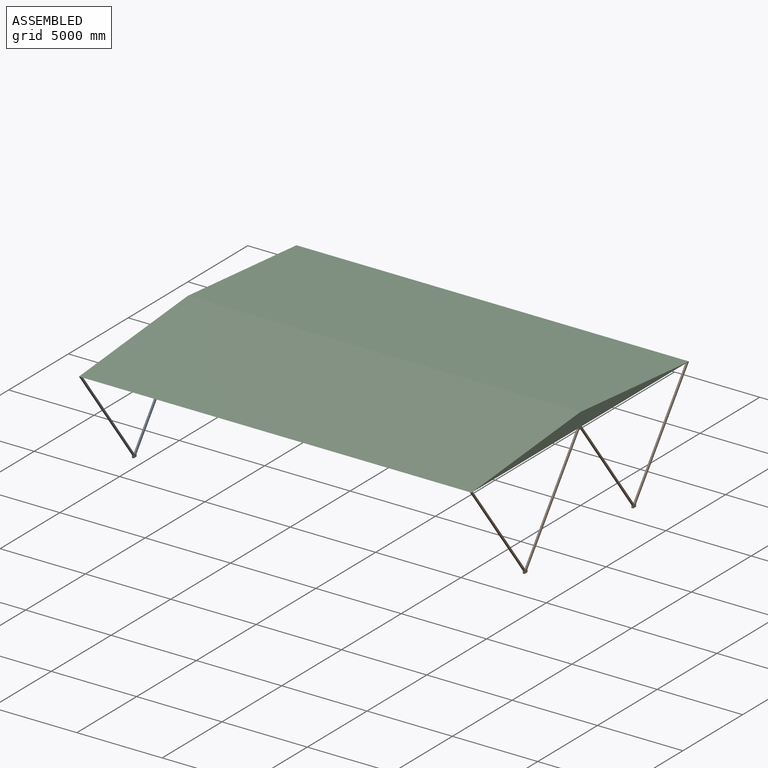
[diagram: assembled view]
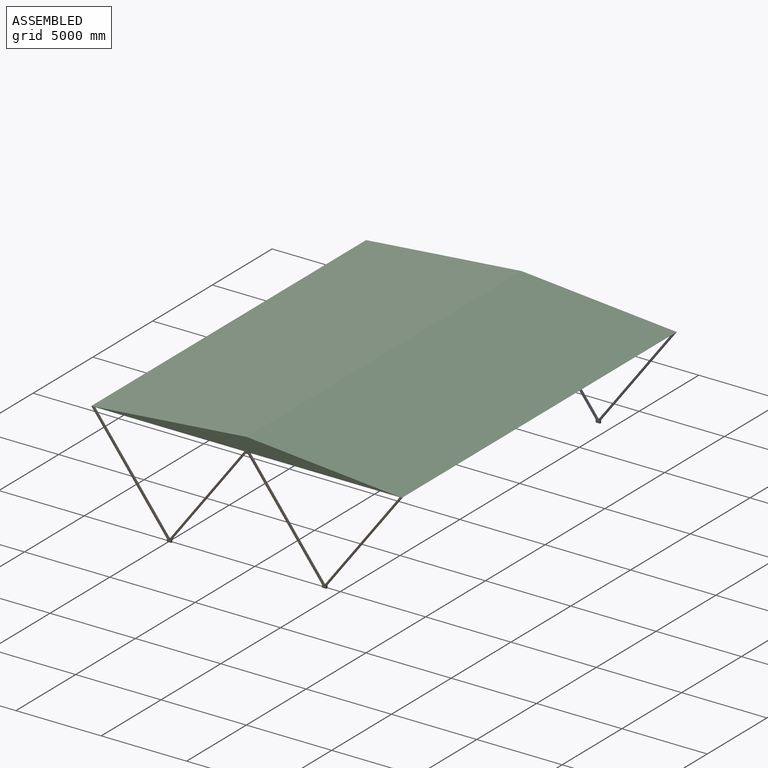
[diagram: assembled view, second angle]
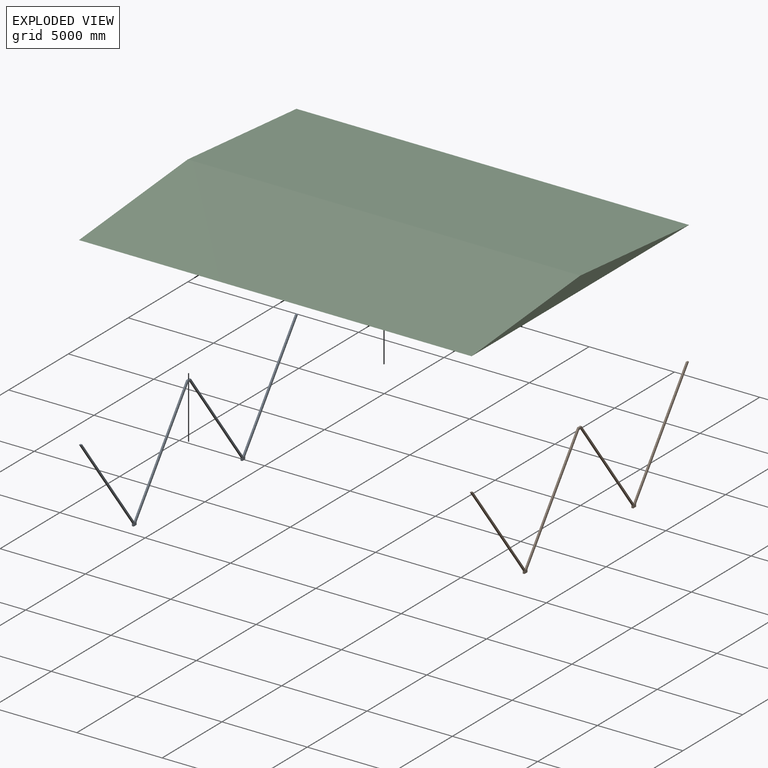
[diagram: exploded view]
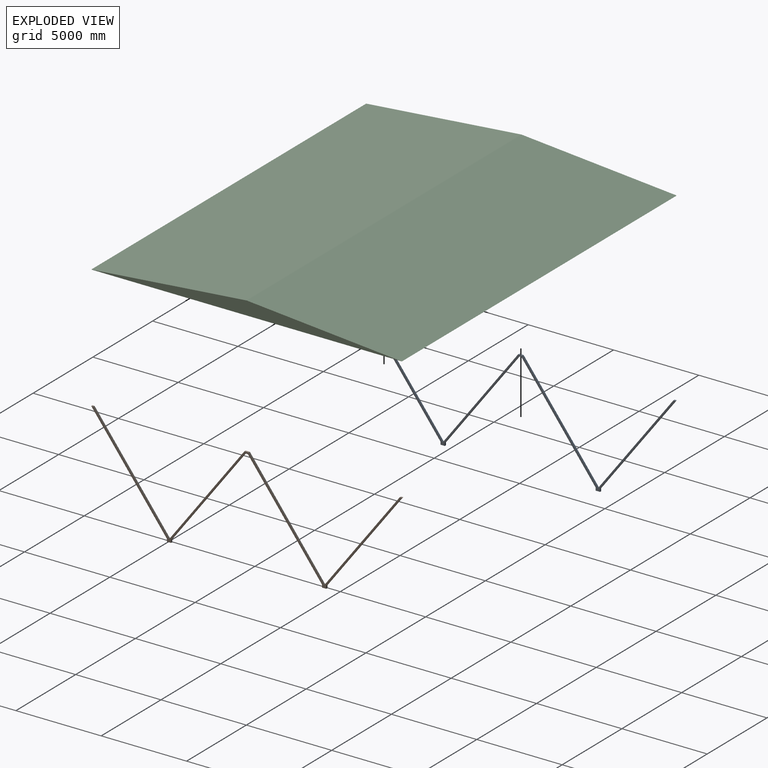
[diagram: exploded view, second angle]
ASSEMBLY  parts=3 mates=2
PART A: 20 faces, bbox 100x18200x6000 mm
  f0: plane 5841.09x4419.61mm, normal (0,0.8,0.6), area 732470mm2, adj f1,f17,f18,f19
  f1: plane 250.8x100mm, normal (0,0,1), area 25079.9mm2, adj f0,f2,f18,f19
  f2: plane 5841.09x4419.61mm, normal (0,-0.8,0.6), area 732470mm2, adj f1,f3,f18,f19
  f3: plane 5841.09x4429.49mm, normal (0,0.8,0.6), area 733066.7mm2, adj f2,f4,f18,f19
  f4: plane 125.5x100mm, normal (0,0,1), area 12550.2mm2, adj f3,f5,f18,f19
  f5: plane 5841.09x4429.49mm, normal (0,-0.8,-0.6), area 733066.7mm2, adj f4,f6,f18,f19
  f6: plane 158.91x100mm, normal (0,-1,0), area 15891.3mm2, adj f5,f7,f18,f19
  f7: plane 250.9x100mm, normal (0,0,-1), area 25090.1mm2, adj f6,f8,f18,f19
  f8: plane 158.91x100mm, normal (0,1,0), area 15891.3mm2, adj f7,f9,f18,f19
  f9: plane 5741.09x4343.94mm, normal (0,0.8,-0.6), area 719930mm2, adj f8,f10,f18,f19
  f10: plane 151.33x100mm, normal (0,0,-1), area 15132.8mm2, adj f9,f11,f18,f19
  f11: plane 5741.09x4343.94mm, normal (0,-0.8,-0.6), area 719930mm2, adj f10,f12,f18,f19
  f12: plane 158.91x100mm, normal (0,-1,0), area 15891.3mm2, adj f11,f13,f18,f19
  f13: plane 250.9x100mm, normal (0,0,-1), area 25090.1mm2, adj f12,f14,f18,f19
  f14: plane 158.91x100mm, normal (0,1,0), area 15891.3mm2, adj f13,f15,f18,f19
  f15: plane 5841.09x4429.49mm, normal (0,0.8,-0.6), area 733066.7mm2, adj f14,f16,f18,f19
  f16: plane 125.5x100mm, normal (0,0,1), area 12550.2mm2, adj f15,f17,f18,f19
  f17: plane 5841.09x4429.49mm, normal (0,-0.8,0.6), area 733066.7mm2, adj f0,f16,f18,f19
  f18: plane 18200x6000mm, normal (1,0,0), area 3018382.9mm2, adj f0,f1,f2,f3,f4,f5,f6,f7
  f19: plane 18200x6000mm, normal (-1,0,0), area 3018382.9mm2, adj f0,f1,f2,f3,f4,f5,f6,f7
PART B: same geometry as A
PART C: 9 faces, bbox 23000x18200x796.1 mm
  f0: plane 23000x18200mm, normal (0,0,-1), area 16884418.9mm2, adj f1,f2,f3,f4,f5,f6,f7,f8
  f1: plane 23000x9100mm, normal (0,0.09,1), area 210099492mm2, adj f0,f2,f3,f4
  f2: plane 23000x9100mm, normal (0,-0.09,1), area 210099492mm2, adj f0,f1,f3,f4
  f3: plane 18200x796.15mm, normal (1,0,0), area 7244936.2mm2, adj f0,f1,f2
  f4: plane 18200x796.15mm, normal (-1,0,0), area 7244936.2mm2, adj f0,f1,f2
  f5: plane 22940x8755.79mm, normal (0,-0.09,-1), area 201625034.7mm2, adj f0,f6,f7,f8
  f6: plane 22940x8755.79mm, normal (0,0.09,-1), area 201625034.7mm2, adj f0,f5,f7,f8
  f7: plane 17511.58x766.03mm, normal (-1,0,0), area 6707216.4mm2, adj f0,f5,f6
  f8: plane 17511.58x766.03mm, normal (1,0,0), area 6707216.4mm2, adj f0,f5,f6
PLACE A t=(-15729.65,-397.32,2668.93)mm
PLACE B t=(7170.35,-397.32,2668.93)mm
PLACE C t=(-15729.65,8702.68,2668.93)mm
MATE fastened B.f4 <-> C.f0  axis (0,0,1) through (7270.35,-9497.32,2668.93)mm
MATE fastened A.f4 <-> C.f0  axis (0,0,1) through (-15729.65,-9497.32,2668.93)mm
